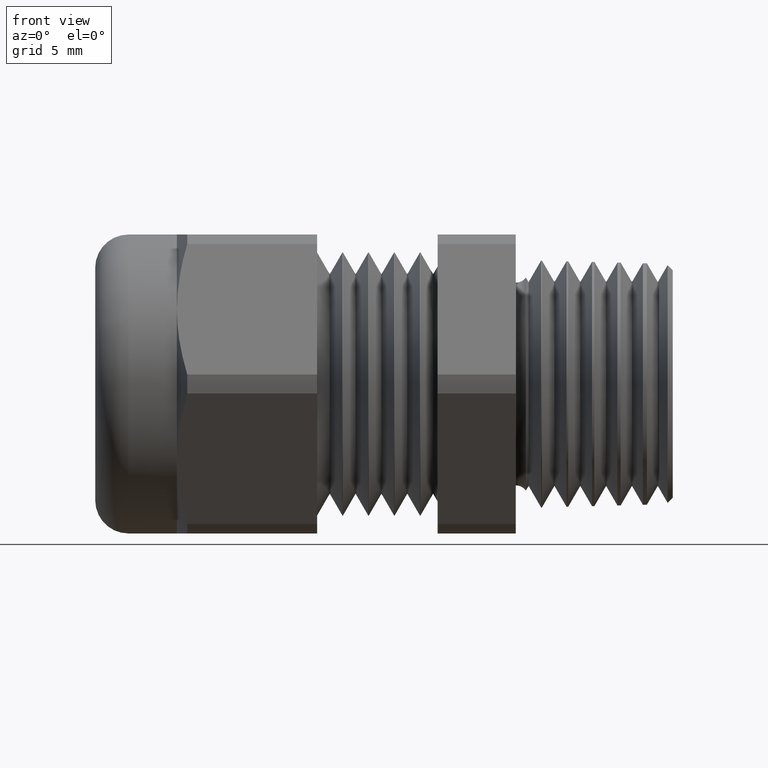
[diagram: clean part render]
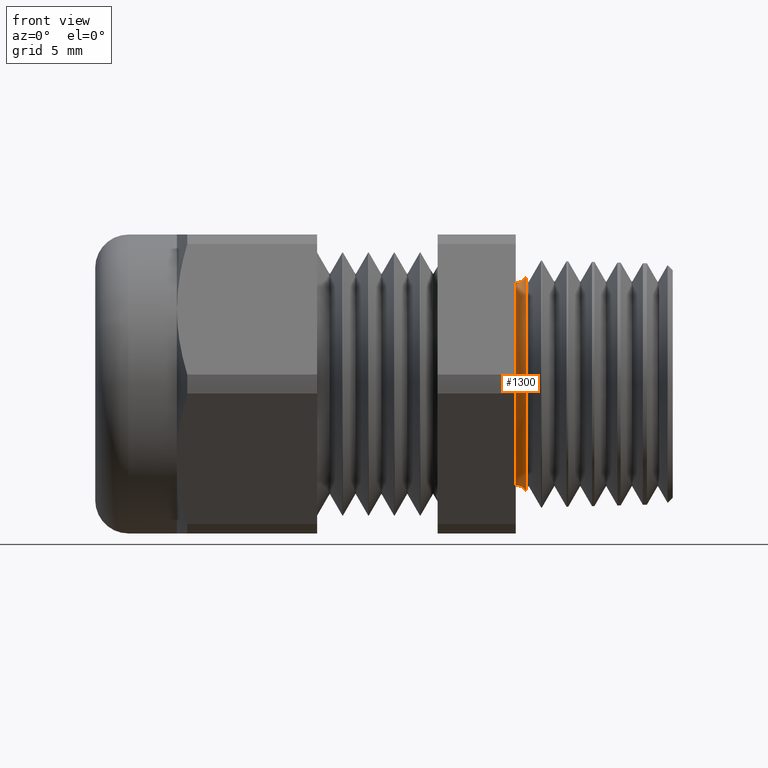
[diagram: same view with one face highlighted and labeled with its STEP entity id]
A machine part, front view. The second image highlights one B-rep face of the part: STEP entity #1300.
In plain terms, the highlighted toroidal blend (fillet) surface has major radius 5.715 mm and minor (blend) radius 0.635 mm.
Its self-contained STEP definition (entity closure, byte-faithful):
#171 = EDGE_CURVE ( 'NONE', #1322, #1317, #1447, .T. ) ;
#172 = ORIENTED_EDGE ( 'NONE', *, *, #171, .F. ) ;
#173 = EDGE_CURVE ( 'NONE', #1311, #1319, #1442, .T. ) ;
#1300 = ADVANCED_FACE ( 'NONE', ( #3175 ), #3174, .F. ) ;
#1311 = VERTEX_POINT ( 'NONE', #3163 ) ;
#1317 = VERTEX_POINT ( 'NONE', #3221 ) ;
#1318 = EDGE_CURVE ( 'NONE', #1317, #1319, #3220, .T. ) ;
#1319 = VERTEX_POINT ( 'NONE', #3215 ) ;
#1322 = VERTEX_POINT ( 'NONE', #3209 ) ;
#1326 = ORIENTED_EDGE ( 'NONE', *, *, #173, .T. ) ;
#1327 = EDGE_CURVE ( 'NONE', #1322, #1311, #3208, .T. ) ;
#1328 = EDGE_LOOP ( 'NONE', ( #1330, #1326, #1329, #172 ) ) ;
#1329 = ORIENTED_EDGE ( 'NONE', *, *, #1318, .F. ) ;
#1330 = ORIENTED_EDGE ( 'NONE', *, *, #1327, .T. ) ;
#1439 = DIRECTION ( 'NONE',  ( 0.0000000000000000000, 0.0000000000000000000, -1.000000000000000000 ) ) ;
#1440 = DIRECTION ( 'NONE',  ( 1.000000000000000000, 0.0000000000000000000, 0.0000000000000000000 ) ) ;
#1441 = AXIS2_PLACEMENT_3D ( 'NONE', #1448, #1440, #1439 ) ;
#1442 = CIRCLE ( 'NONE', #1441, 0.2000000000000000900 ) ;
#1443 = DIRECTION ( 'NONE',  ( 0.0000000000000000000, 0.0000000000000000000, 1.000000000000000000 ) ) ;
#1444 = DIRECTION ( 'NONE',  ( 1.000000000000000000, 0.0000000000000000000, 0.0000000000000000000 ) ) ;
#1445 = CARTESIAN_POINT ( 'NONE',  ( 0.02011669327523407700, 0.0000000000000000000, 0.0000000000000000000 ) ) ;
#1446 = AXIS2_PLACEMENT_3D ( 'NONE', #1445, #1444, #1443 ) ;
#1447 = CIRCLE ( 'NONE', #1446, 0.2101568651670157900 ) ;
#1448 = CARTESIAN_POINT ( 'NONE',  ( -3.061616997868362800E-018, 0.0000000000000000000, 0.0000000000000000000 ) ) ;
#3163 = CARTESIAN_POINT ( 'NONE',  ( -3.061616997868362800E-018, 2.449293598294707800E-017, 0.2000000000000000900 ) ) ;
#3170 = DIRECTION ( 'NONE',  ( 0.0000000000000000000, 0.0000000000000000000, -1.000000000000000000 ) ) ;
#3171 = DIRECTION ( 'NONE',  ( 1.000000000000000000, 0.0000000000000000000, 0.0000000000000000000 ) ) ;
#3172 = CARTESIAN_POINT ( 'NONE',  ( 0.0000000000000000000, 0.0000000000000000000, 0.0000000000000000000 ) ) ;
#3173 = AXIS2_PLACEMENT_3D ( 'NONE', #3172, #3171, #3170 ) ;
#3174 = TOROIDAL_SURFACE ( 'NONE', #3173, 0.2249999999999999200, 0.02499999999999983500 ) ;
#3175 = FACE_OUTER_BOUND ( 'NONE', #1328, .T. ) ;
#3204 = DIRECTION ( 'NONE',  ( 0.0000000000000000000, 1.224646799147352500E-016, 1.000000000000000000 ) ) ;
#3205 = DIRECTION ( 'NONE',  ( 0.0000000000000000000, 1.000000000000000000, -1.224646799147353200E-016 ) ) ;
#3206 = CARTESIAN_POINT ( 'NONE',  ( 0.0000000000000000000, 2.755455298081543900E-017, 0.2249999999999999200 ) ) ;
#3207 = AXIS2_PLACEMENT_3D ( 'NONE', #3206, #3205, #3204 ) ;
#3208 = CIRCLE ( 'NONE', #3207, 0.02499999999999983500 ) ;
#3209 = CARTESIAN_POINT ( 'NONE',  ( 0.02011669327523407700, 0.0000000000000000000, 0.2101568651670157900 ) ) ;
#3215 = CARTESIAN_POINT ( 'NONE',  ( -3.061616997868362800E-018, 0.0000000000000000000, -0.2000000000000000900 ) ) ;
#3216 = DIRECTION ( 'NONE',  ( 0.0000000000000000000, 0.0000000000000000000, -1.000000000000000000 ) ) ;
#3217 = DIRECTION ( 'NONE',  ( 0.0000000000000000000, -1.000000000000000000, 0.0000000000000000000 ) ) ;
#3218 = CARTESIAN_POINT ( 'NONE',  ( 0.0000000000000000000, 0.0000000000000000000, -0.2249999999999999200 ) ) ;
#3219 = AXIS2_PLACEMENT_3D ( 'NONE', #3218, #3217, #3216 ) ;
#3220 = CIRCLE ( 'NONE', #3219, 0.02499999999999983500 ) ;
#3221 = CARTESIAN_POINT ( 'NONE',  ( 0.02011669327523407700, 2.573679322456277700E-017, -0.2101568651670157900 ) ) ;